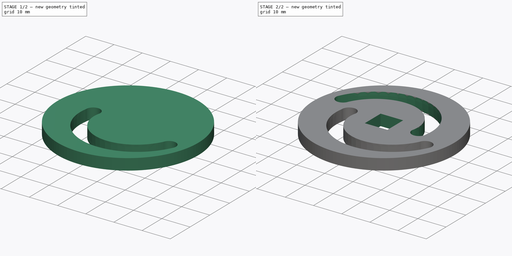
[diagram: build sequence overview — one tinted view per stage of 2, left to right]
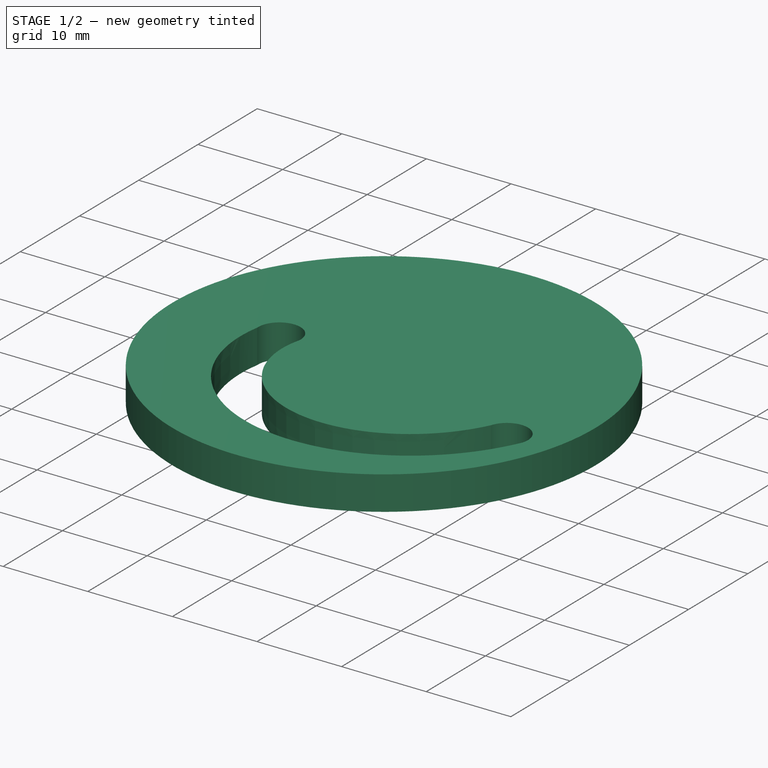
[diagram: stage 1 of 2 — iso view after this stage's code; geometry added in this stage tinted green]
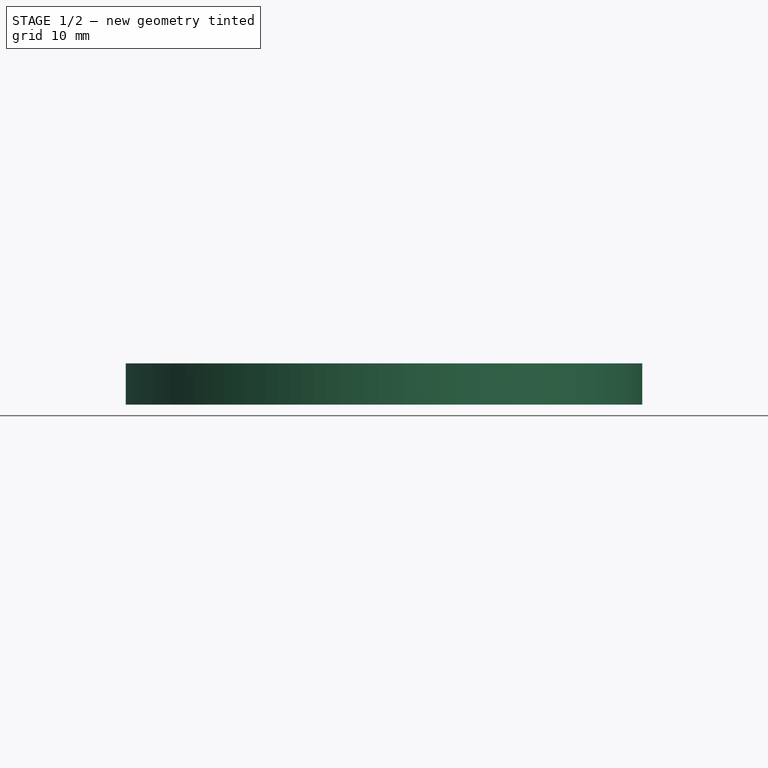
[diagram: stage 1 of 2 — front view after this stage's code; geometry added in this stage tinted green]
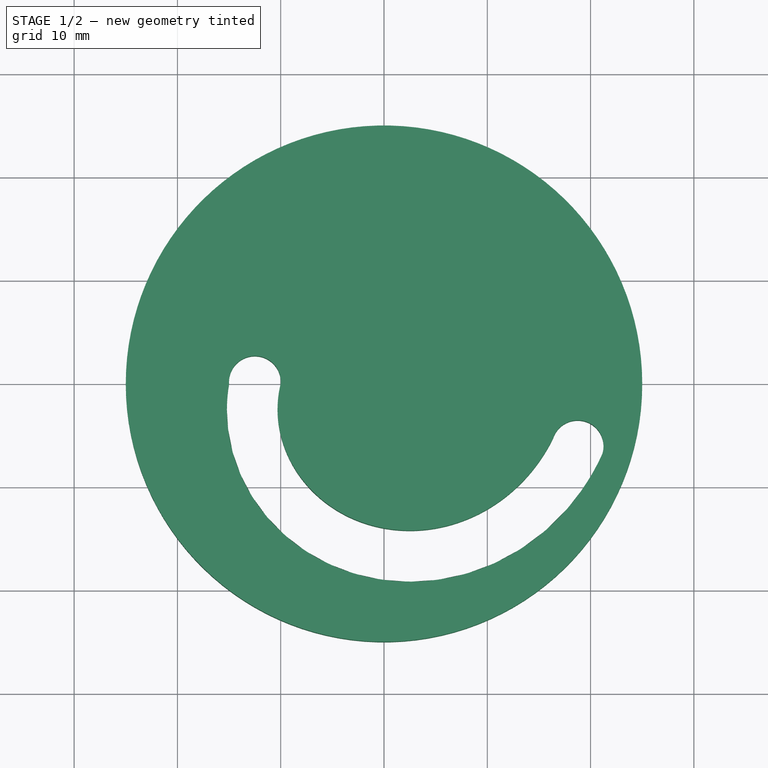
[diagram: stage 1 of 2 — top view after this stage's code; geometry added in this stage tinted green]
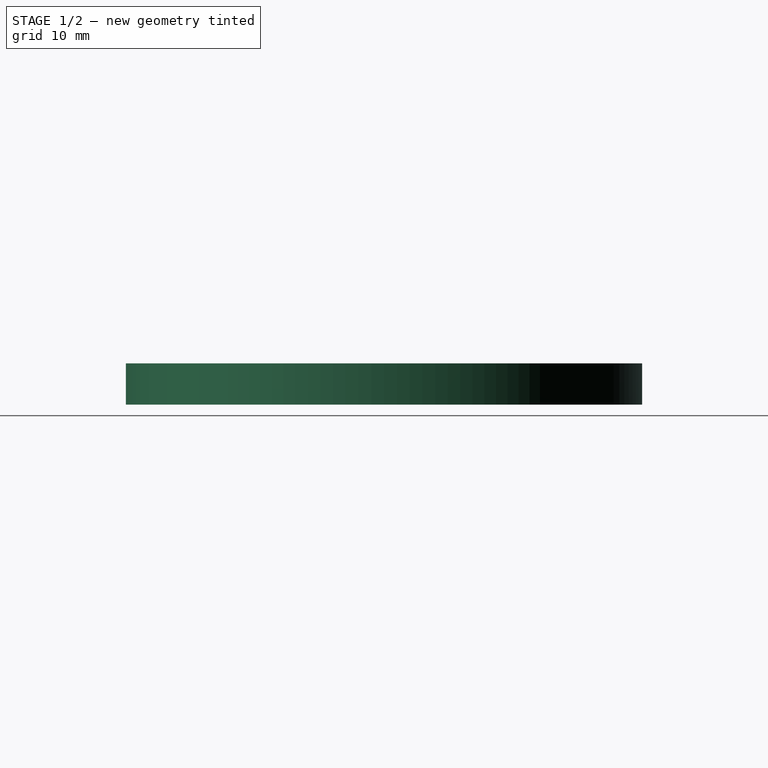
[diagram: stage 1 of 2 — right view after this stage's code; geometry added in this stage tinted green]
FCSTD DOCUMENT  (FreeCAD 0.21R33771 (Git))
Label: CammaRotazioneHalfNut-160
License: All rights reserved
LicenseURL: http://en.wikipedia.org/wiki/All_rights_reserved
objects: Sketcher::SketchObject×6, App::MeasureDistance×5, Part::Spiral×2, PartDesign::Pocket×2, PartDesign::Pad×1, PartDesign::CoordinateSystem×1, PartDesign::Body×1
note: 16 computed .brp shape members not serialized (recipe doc carries the construction recipe); baked Part::Feature solids carry a one-line shape summary decoded from their .brp

FEATURE [Sketcher::SketchObject] Sketch
  FullyConstrained = true
  MapMode = 5
  Support = -> [XY_Plane]
  sketch-geometry (1):
    g0: Circle CenterX=0 CenterY=0 CenterZ=0 NormalX=0 NormalY=0 NormalZ=1 AngleXU=0 Radius=25
  constraints (2):
    c: Coincident(g0,g-1)
    c: Radius(g0) = 25
FEATURE [PartDesign::Pad] Pad
  Direction = (0,0,1)
  Length = 4
  Length2 = 10
  Profile = -> Sketch
  ReferenceAxis = -> Sketch [N_Axis]
  Type = 0
FEATURE [Part::Spiral] Spiral  label="Spirale"
  AttacherType = Attacher::AttachEngine3D
  Growth = 16
  Placement = pos=(0,0,0) rot=(0,0,1;3.14159rad)
  Radius = 15
  Rotations = 0.45
  SegmentLength = 1
FEATURE [Part::Spiral] Spiral001  label="Spirale001"
  AttacherType = Attacher::AttachEngine3D
  Growth = 16
  Placement = pos=(0,0,0) rot=(0,0,1;3.14159rad)
  Radius = 10
  Rotations = 0.45
  SegmentLength = 1
FEATURE [Sketcher::SketchObject] Sketch001
  FullyConstrained = false
  Placement = pos=(0,0,0) rot=(0,0,1;3.14159rad)
  sketch-geometry (1):
    g0: BSplineCurve PolesCount=9 KnotsCount=2 Degree=8 IsPeriodic=0
FEATURE [Sketcher::SketchObject] Sketch002
  FullyConstrained = false
  Placement = pos=(0,0,0) rot=(0,0,1;3.14159rad)
  sketch-geometry (1):
    g0: BSplineCurve PolesCount=9 KnotsCount=2 Degree=8 IsPeriodic=0
FEATURE [Sketcher::SketchObject] Sketch004
  FullyConstrained = false
  Placement = pos=(0,0,0) rot=(0,0,1;3.14159rad)
  sketch-geometry (2):
    g0: BSplineCurve PolesCount=9 KnotsCount=2 Degree=8 IsPeriodic=0
    g1: BSplineCurve PolesCount=9 KnotsCount=2 Degree=8 IsPeriodic=0
FEATURE [PartDesign::CoordinateSystem] LCS_CammaHalfNut
  AttacherType = Attacher::AttachEngine3D
FEATURE [Sketcher::SketchObject] Sketch008
  FullyConstrained = false
  Placement = pos=(0,0,0) rot=(0,0,1;3.14159rad)
  sketch-geometry (4):
    g0: BSplineCurve PolesCount=11 KnotsCount=2 Degree=10 IsPeriodic=0
    g1: BSplineCurve PolesCount=11 KnotsCount=2 Degree=10 IsPeriodic=0
    g2: ArcOfCircle CenterX=-18.7499 CenterY=6.0442 CenterZ=0 NormalX=0 NormalY=0 NormalZ=1 AngleXU=0 Radius=2.50042 StartAngle=2.80917 EndAngle=5.98729
    g3: ArcOfCircle CenterX=12.5 CenterY=-0.178417 CenterZ=0 NormalX=0 NormalY=0 NormalZ=1 AngleXU=0 Radius=2.50636 StartAngle=3.07035 EndAngle=6.35443
  constraints (4):
    c: Coincident(g2,g0)
    c: Coincident(g2,g1)
    c: Coincident(g3,g1)
    c: Coincident(g3,g0)
FEATURE [Sketcher::SketchObject] Sketch009
  FullyConstrained = false
  sketch-geometry (8):
    g0: BSplineCurve PolesCount=11 KnotsCount=2 Degree=10 IsPeriodic=0
    g1: BSplineCurve PolesCount=11 KnotsCount=2 Degree=10 IsPeriodic=0
    g2: ArcOfCircle CenterX=-18.7499 CenterY=6.0442 CenterZ=0 NormalX=0 NormalY=0 NormalZ=1 AngleXU=0 Radius=2.50042 StartAngle=2.80917 EndAngle=5.98729
    g3: ArcOfCircle CenterX=12.5 CenterY=-0.178417 CenterZ=0 NormalX=0 NormalY=0 NormalZ=1 AngleXU=0 Radius=2.50636 StartAngle=3.07035 EndAngle=6.35443
    g4: LineSegment StartX=-4 StartY=4 StartZ=0 EndX=4 EndY=4 EndZ=0
    g5: LineSegment StartX=4 StartY=4 StartZ=0 EndX=4 EndY=-4 EndZ=0
    g6: LineSegment StartX=4 StartY=-4 StartZ=0 EndX=-4 EndY=-4 EndZ=0
    g7: LineSegment StartX=-4 StartY=-4 StartZ=0 EndX=-4 EndY=4 EndZ=0
  constraints (16):
    c: Coincident(g2,g0)
    c: Coincident(g2,g1)
    c: Coincident(g3,g1)
    c: Coincident(g3,g0)
    c: Coincident(g4,g5)
    c: Coincident(g5,g6)
    c: Coincident(g6,g7)
    c: Coincident(g7,g4)
    c: Horizontal(g4)
    c: Horizontal(g6)
    c: Vertical(g5)
    c: Vertical(g7)
    c: DistanceY(g7,g7) = 8
    c: DistanceX(g4,g4) = 8
    c: DistanceX(g6,g-1) = 4
    c: DistanceY(g5,g-1) = 4
FEATURE [PartDesign::Pocket] Pocket
  BaseFeature = -> Pad
  Direction = (0,0,-1)
  Length = 5
  Length2 = 5
  Profile = -> Sketch008
  ReferenceAxis = -> Sketch008 [N_Axis]
  Reversed = true
  Type = 0
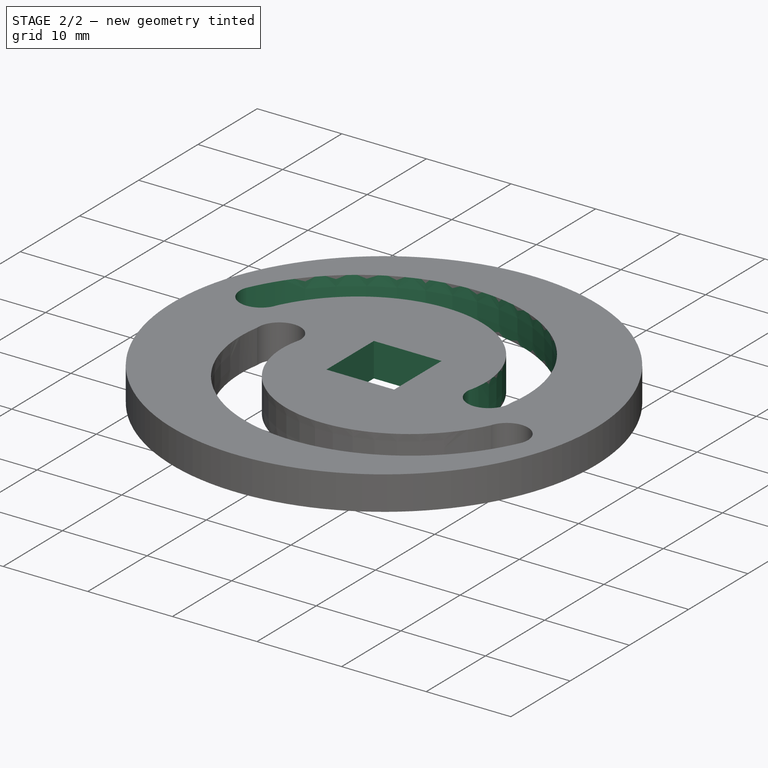
[diagram: stage 2 of 2 — iso view after this stage's code; geometry added in this stage tinted green]
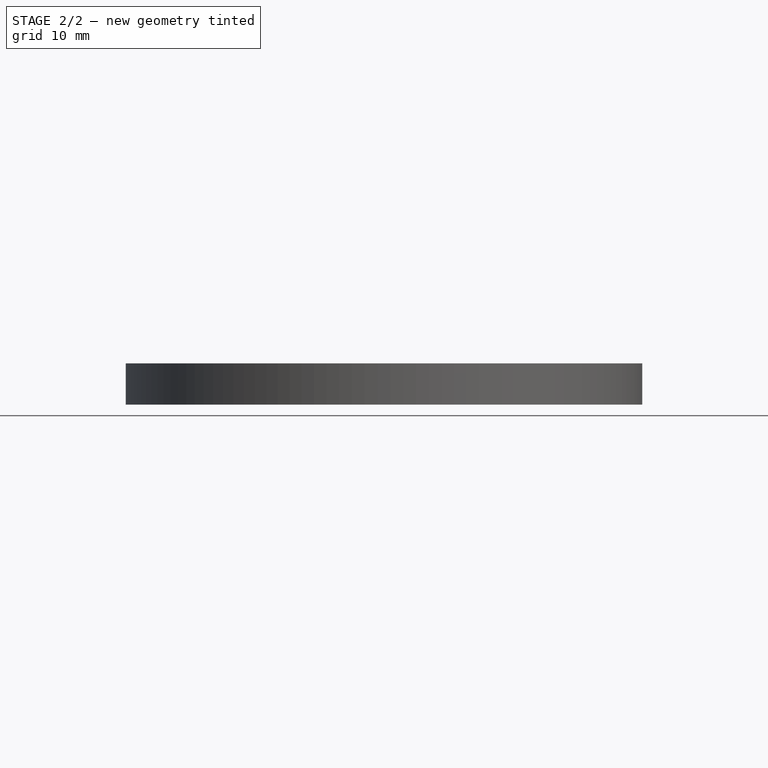
[diagram: stage 2 of 2 — front view after this stage's code; geometry added in this stage tinted green]
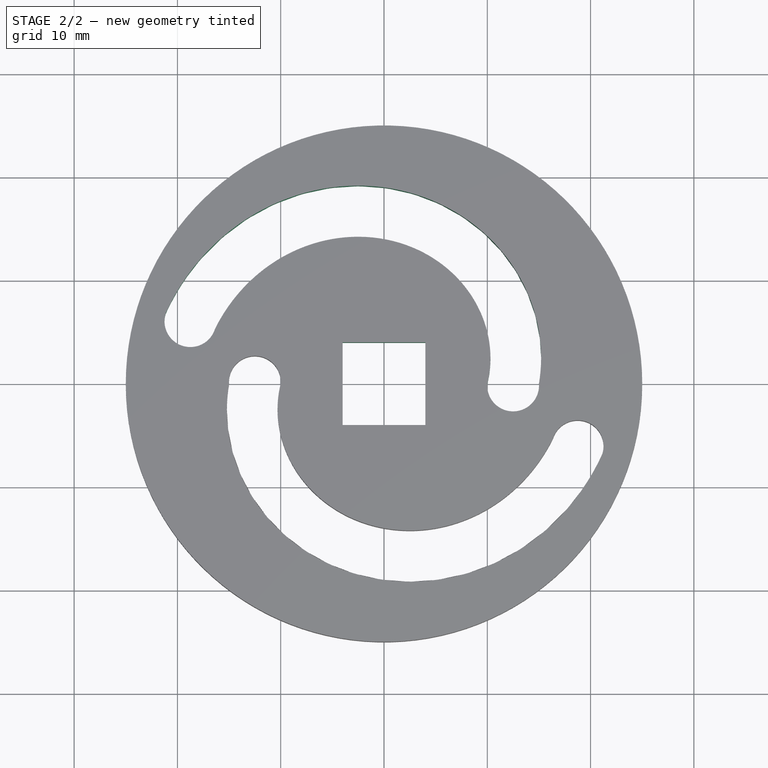
[diagram: stage 2 of 2 — top view after this stage's code; geometry added in this stage tinted green]
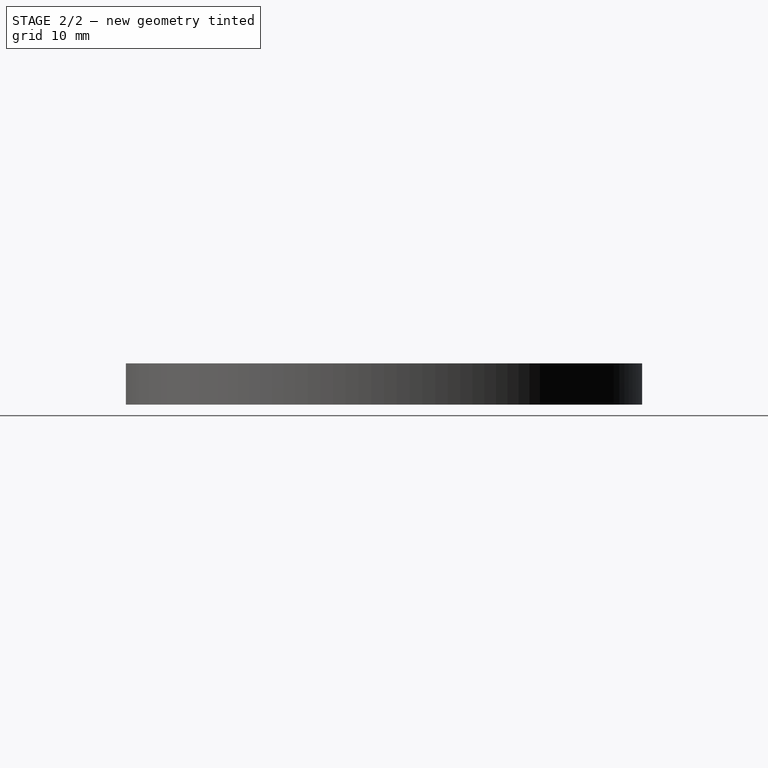
[diagram: stage 2 of 2 — right view after this stage's code; geometry added in this stage tinted green]
FEATURE [PartDesign::Pocket] Pocket001
  BaseFeature = -> Pocket
  Direction = (0,0,-1)
  Length = 5
  Length2 = 5
  Profile = -> Sketch009
  ReferenceAxis = -> Sketch009 [N_Axis]
  Reversed = true
  Type = 0
FEATURE [PartDesign::Body] Body
  Group = -> [Sketch,Pad,LCS_CammaHalfNut,Sketch008,Sketch009,Pocket,Pocket001]
  Origin = -> Origin
  Tip = -> Pocket001
FEATURE [App::MeasureDistance] Distance  label="Distance: 6,01 mm"
  Distance = 6.01178
  P1 = (-10.0081,0.175395,0)
  P2 = (-4,0.386232,0)
FEATURE [App::MeasureDistance] Distance001  label="Distance: 12,21 mm"
  Distance = 12.2089
  P1 = (16.1742,-4.93747,0)
  P2 = (3.97317,-5.37772,0)
FEATURE [App::MeasureDistance] Distance002  label="Distance: 14,28 mm"
  Distance = 14.2806
  P1 = (18.1238,0.345436,0)
  P2 = (3.84739,0,0)
FEATURE [App::MeasureDistance] Distance003  label="Distance: 9,85 mm"
  Distance = 9.84686
  P1 = (-0.729168,-13.8468,0)
  P2 = (-0.749632,-4,0)
FEATURE [App::MeasureDistance] Distance004  label="Distance: 9,99 mm"
  Distance = 9.98547
  P1 = (0.246943,-13.9839,0)
  P2 = (0.0679618,-4,0)
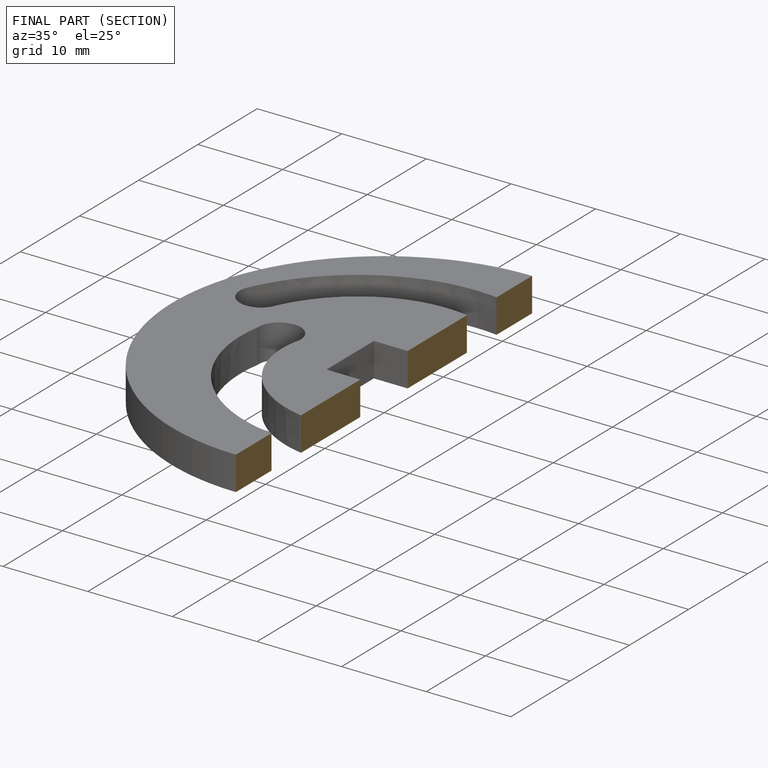
[diagram: finished part — half-section view (interior)]
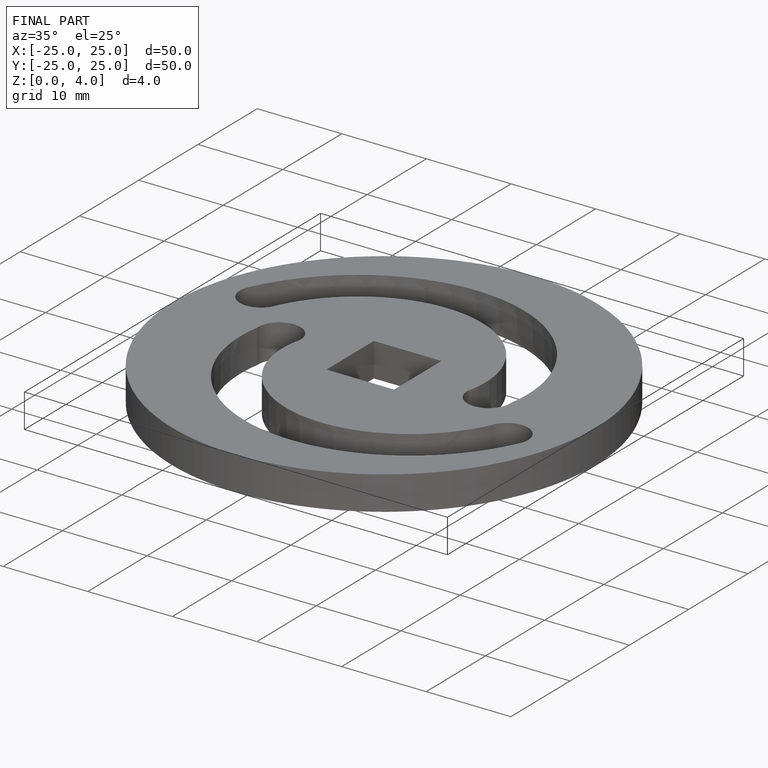
[diagram: finished part — iso view with bounding-box wireframe]
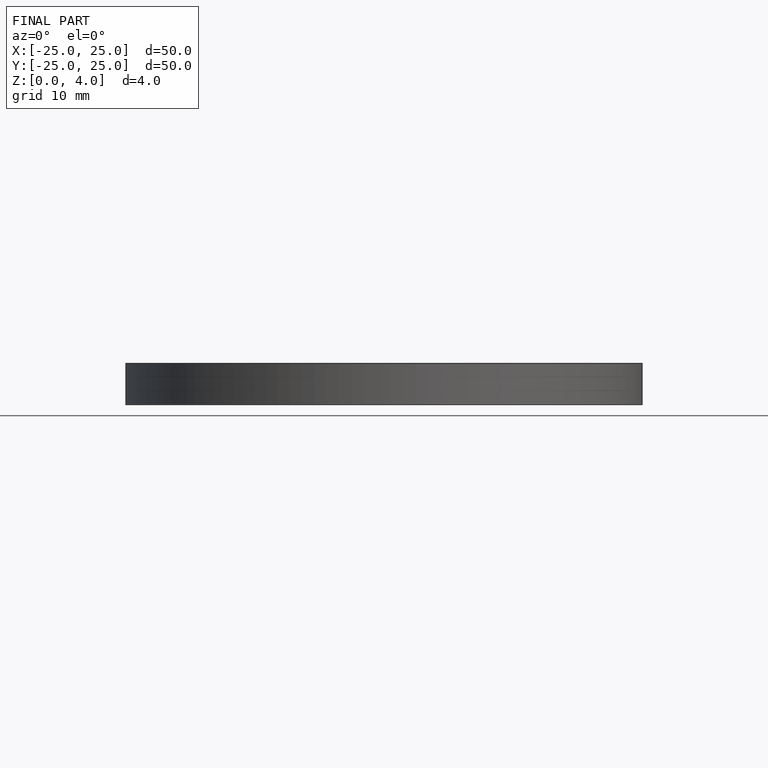
[diagram: finished part — front view with bounding-box wireframe]
